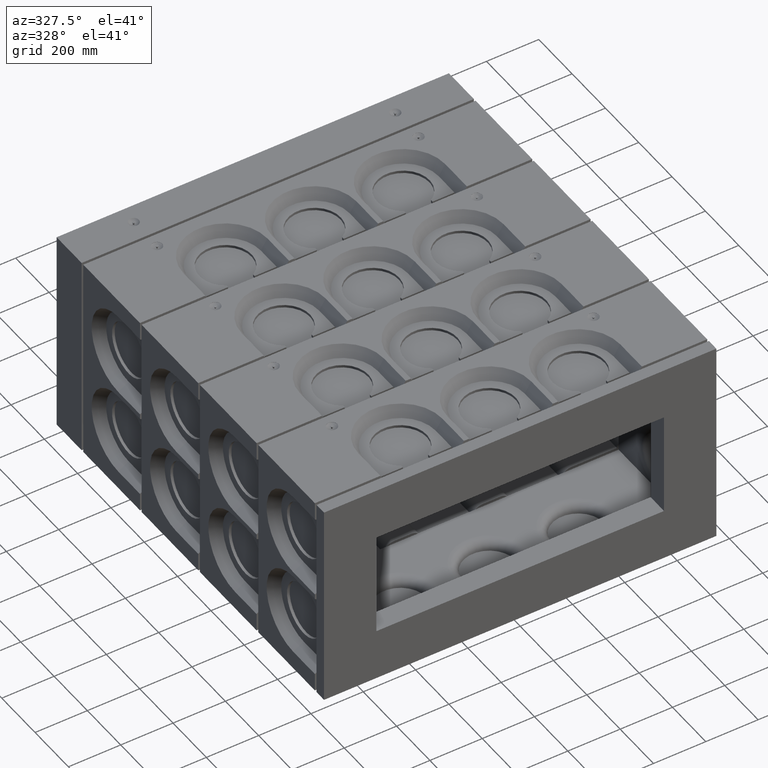
[diagram: clean part render]
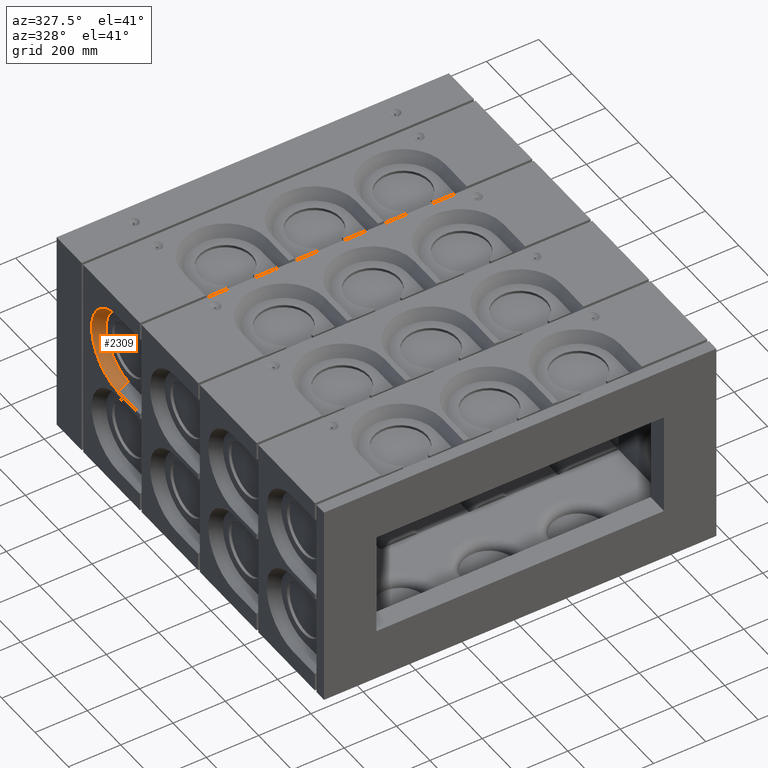
[diagram: same view with one face highlighted and labeled with its STEP entity id]
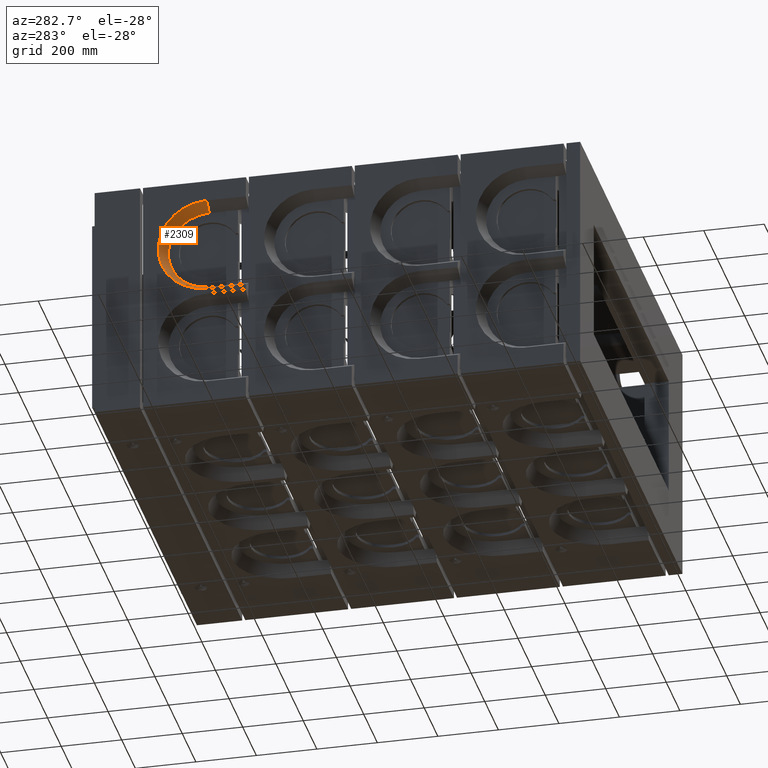
[diagram: same view with one face highlighted and labeled with its STEP entity id]
A machine part, auxiliary view. The second image highlights one B-rep face of the part: STEP entity #2309.
A second angle (auxiliary view) of the same face is appended — the face is thin or edge-on in the first view.
In plain terms, the highlighted conical surface has half-angle 32 deg.
Its self-contained STEP definition (entity closure, byte-faithful):
#2309 = ADVANCED_FACE ( 'NONE', ( #15571 ), #19335, .F. ) ;
#3238 = CARTESIAN_POINT ( 'NONE',  ( -750.0000000000003411, 1234.999999999999773, 330.0000000000004547 ) ) ;
#4492 = CARTESIAN_POINT ( 'NONE',  ( -750.0000000000003411, 1234.999999999999773, 330.0000000000004547 ) ) ;
#4540 = AXIS2_PLACEMENT_3D ( 'NONE', #30015, #6228, #10244 ) ;
#5684 = DIRECTION ( 'NONE',  ( 0.0000000000000000000, 0.0000000000000000000, 1.000000000000000000 ) ) ;
#6228 = DIRECTION ( 'NONE',  ( -1.000000000000000000, -8.474091755303837753E-33, 1.734723475976808019E-17 ) ) ;
#6670 = CARTESIAN_POINT ( 'NONE',  ( -710.0000000000003411, 1235.000000000000000, 305.0052259236272789 ) ) ;
#6944 = VERTEX_POINT ( 'NONE', #10701 ) ;
#8105 = AXIS2_PLACEMENT_3D ( 'NONE', #33507, #10227, #5684 ) ;
#9243 = CIRCLE ( 'NONE', #4540, 159.9999999999999716 ) ;
#10024 = DIRECTION ( 'NONE',  ( -1.000000000000000000, -8.474091755303837753E-33, 1.734723475976808019E-17 ) ) ;
#10227 = DIRECTION ( 'NONE',  ( -1.000000000000000000, -8.474091755303837753E-33, 1.734723475976808019E-17 ) ) ;
#10244 = DIRECTION ( 'NONE',  ( 0.0000000000000000000, 0.0000000000000000000, 1.000000000000000000 ) ) ;
#10701 = CARTESIAN_POINT ( 'NONE',  ( -710.0000000000003411, 1235.000000000000000, 34.99477407637369453 ) ) ;
#13183 = ORIENTED_EDGE ( 'NONE', *, *, #32412, .T. ) ;
#13462 = DIRECTION ( 'NONE',  ( -0.8480480961564252906, 3.566741945586272152E-16, -0.5299192642332060110 ) ) ;
#15571 = FACE_OUTER_BOUND ( 'NONE', #42381, .T. ) ;
#16680 = VERTEX_POINT ( 'NONE', #6670 ) ;
#17728 = DIRECTION ( 'NONE',  ( 0.0000000000000000000, 0.0000000000000000000, 1.000000000000000000 ) ) ;
#18255 = VERTEX_POINT ( 'NONE', #3238 ) ;
#19035 = ORIENTED_EDGE ( 'NONE', *, *, #32475, .T. ) ;
#19335 = CONICAL_SURFACE ( 'NONE', #35413, 159.9999999999999716, 0.5585053606381866764 ) ;
#20514 = EDGE_CURVE ( 'NONE', #6944, #23370, #50669, .T. ) ;
#20980 = DIRECTION ( 'NONE',  ( -0.8480480961564252906, -1.912067847118414047E-16, 0.5299192642332060110 ) ) ;
#22264 = ORIENTED_EDGE ( 'NONE', *, *, #20514, .F. ) ;
#23370 = VERTEX_POINT ( 'NONE', #37469 ) ;
#28659 = LINE ( 'NONE', #4492, #47371 ) ;
#29369 = VECTOR ( 'NONE', #13462, 1000.000000000000114 ) ;
#30015 = CARTESIAN_POINT ( 'NONE',  ( -750.0000000000003411, 1235.000000000000000, 170.0000000000004832 ) ) ;
#32412 = EDGE_CURVE ( 'NONE', #16680, #18255, #28659, .T. ) ;
#32475 = EDGE_CURVE ( 'NONE', #18255, #23370, #9243, .T. ) ;
#32479 = CIRCLE ( 'NONE', #8105, 135.0052259236267957 ) ;
#33423 = CARTESIAN_POINT ( 'NONE',  ( -750.0000000000003411, 1235.000000000000000, 10.00000000000050804 ) ) ;
#33507 = CARTESIAN_POINT ( 'NONE',  ( -710.0000000000003411, 1235.000000000000000, 170.0000000000004832 ) ) ;
#35413 = AXIS2_PLACEMENT_3D ( 'NONE', #38135, #10024, #17728 ) ;
#37469 = CARTESIAN_POINT ( 'NONE',  ( -750.0000000000003411, 1235.000000000000000, 10.00000000000050804 ) ) ;
#37948 = EDGE_CURVE ( 'NONE', #16680, #6944, #32479, .T. ) ;
#38135 = CARTESIAN_POINT ( 'NONE',  ( -750.0000000000003411, 1235.000000000000000, 170.0000000000004832 ) ) ;
#42381 = EDGE_LOOP ( 'NONE', ( #19035, #22264, #44561, #13183 ) ) ;
#44561 = ORIENTED_EDGE ( 'NONE', *, *, #37948, .F. ) ;
#47371 = VECTOR ( 'NONE', #20980, 1000.000000000000114 ) ;
#50669 = LINE ( 'NONE', #33423, #29369 ) ;